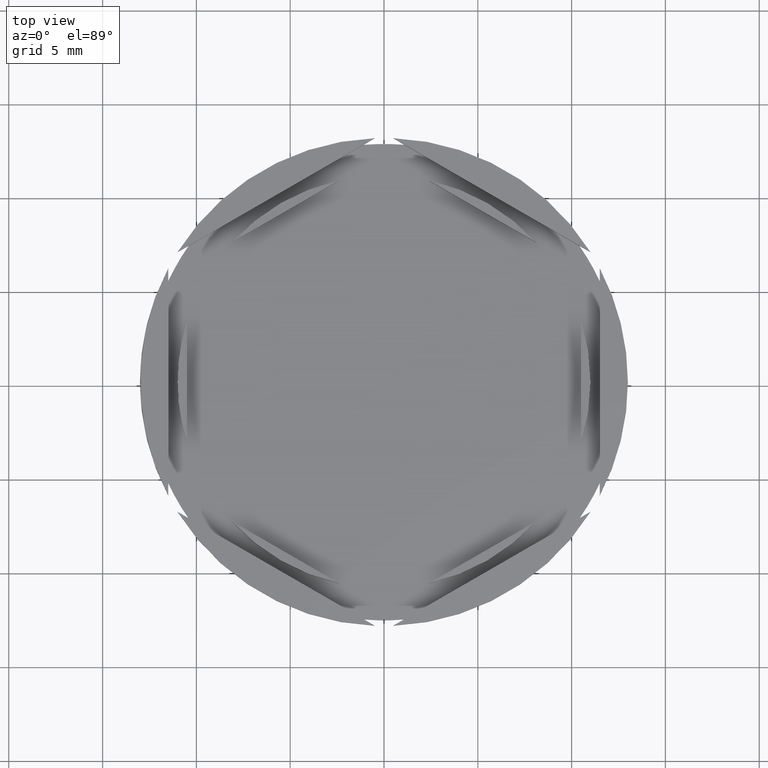
[diagram: clean part render]
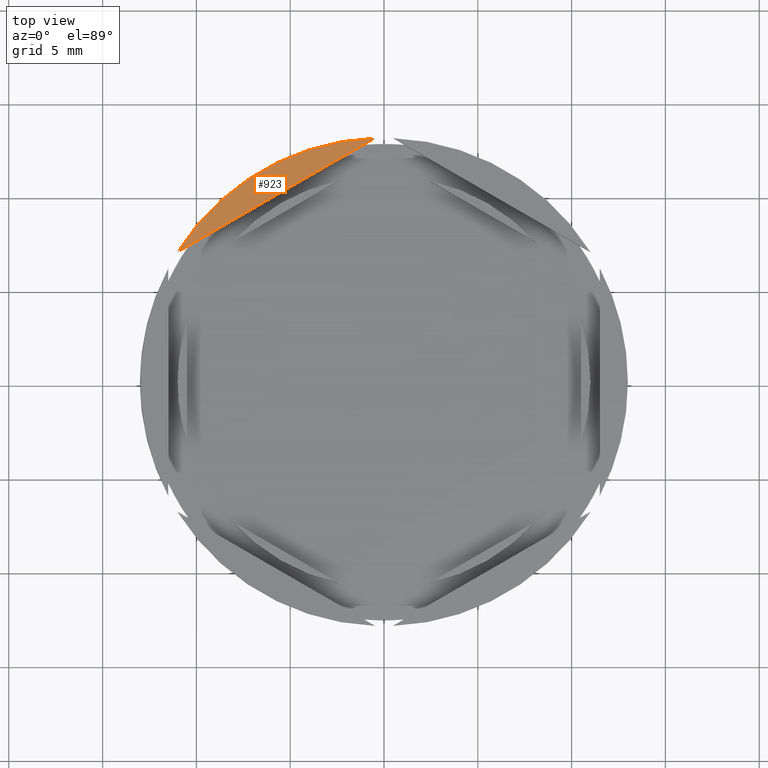
[diagram: same view with one face highlighted and labeled with its STEP entity id]
A machine part, top view. The second image highlights one B-rep face of the part: STEP entity #923.
In plain terms, the highlighted planar face has unit normal (0, -0, 1).
Its self-contained STEP definition (entity closure, byte-faithful):
#4 = DIRECTION ( 'NONE',  ( -0.8660254037844387076, -0.4999999999999998890, 0.000000000000000000 ) ) ;
#21 = CARTESIAN_POINT ( 'NONE',  ( 0.000000000000000000, 0.000000000000000000, 0.000000000000000000 ) ) ;
#100 = DIRECTION ( 'NONE',  ( 1.000000000000000000, 0.000000000000000000, 0.000000000000000000 ) ) ;
#112 = CARTESIAN_POINT ( 'NONE',  ( -11.00000000000000000, 6.928203230275504332, 0.000000000000000000 ) ) ;
#144 = EDGE_CURVE ( 'NONE', #748, #2367, #362, .T. ) ;
#362 = LINE ( 'NONE', #2379, #1720 ) ;
#417 = AXIS2_PLACEMENT_3D ( 'NONE', #2351, #2359, #484 ) ;
#484 = DIRECTION ( 'NONE',  ( 1.000000000000000000, 0.000000000000000000, 0.000000000000000000 ) ) ;
#498 = EDGE_LOOP ( 'NONE', ( #1445, #882 ) ) ;
#559 = CIRCLE ( 'NONE', #417, 12.99999999999999822 ) ;
#748 = VERTEX_POINT ( 'NONE', #1683 ) ;
#844 = AXIS2_PLACEMENT_3D ( 'NONE', #21, #1484, #100 ) ;
#882 = ORIENTED_EDGE ( 'NONE', *, *, #1566, .T. ) ;
#923 = ADVANCED_FACE ( 'NONE', ( #937 ), #1672, .T. ) ;
#937 = FACE_OUTER_BOUND ( 'NONE', #498, .T. ) ;
#1445 = ORIENTED_EDGE ( 'NONE', *, *, #144, .F. ) ;
#1484 = DIRECTION ( 'NONE',  ( 0.000000000000000000, -0.000000000000000000, 1.000000000000000000 ) ) ;
#1566 = EDGE_CURVE ( 'NONE', #748, #2367, #559, .T. ) ;
#1672 = PLANE ( 'NONE',  #844 ) ;
#1683 = CARTESIAN_POINT ( 'NONE',  ( -0.4999999999999926170, 12.99038105676657651, 0.000000000000000000 ) ) ;
#1720 = VECTOR ( 'NONE', #4, 1000.000000000000000 ) ;
#2351 = CARTESIAN_POINT ( 'NONE',  ( 0.000000000000000000, 0.000000000000000000, 0.000000000000000000 ) ) ;
#2359 = DIRECTION ( 'NONE',  ( -0.000000000000000000, -0.000000000000000000, 1.000000000000000000 ) ) ;
#2367 = VERTEX_POINT ( 'NONE', #112 ) ;
#2379 = CARTESIAN_POINT ( 'NONE',  ( 0.000000000000000000, 13.27905619136138604, 0.000000000000000000 ) ) ;